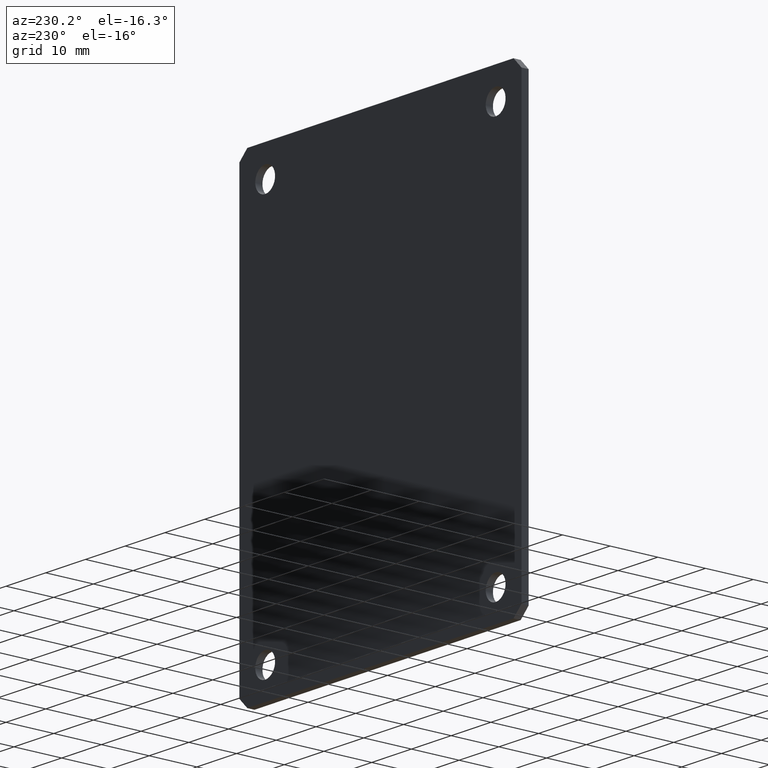
[diagram: clean part render]
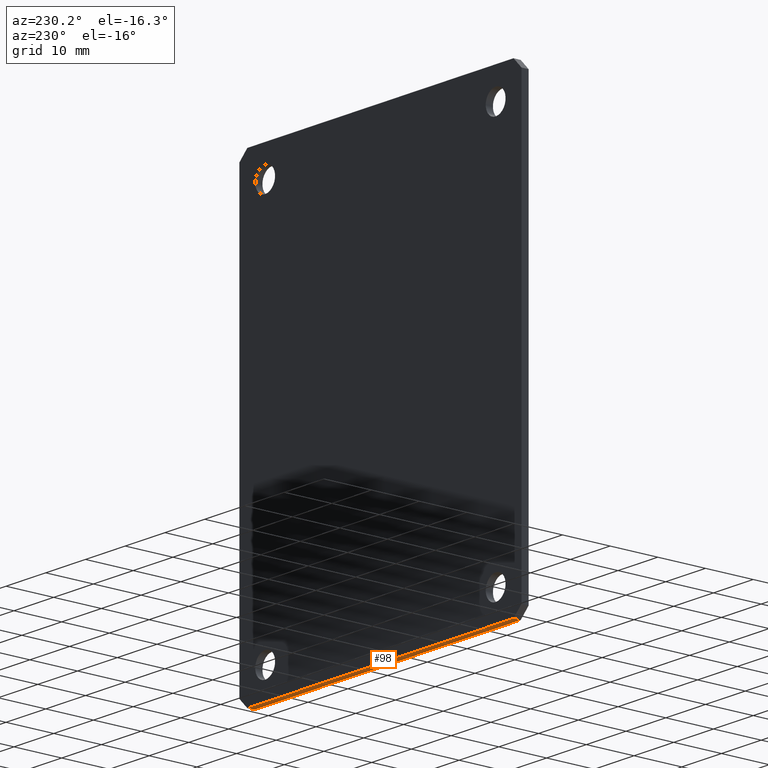
[diagram: same view with one face highlighted and labeled with its STEP entity id]
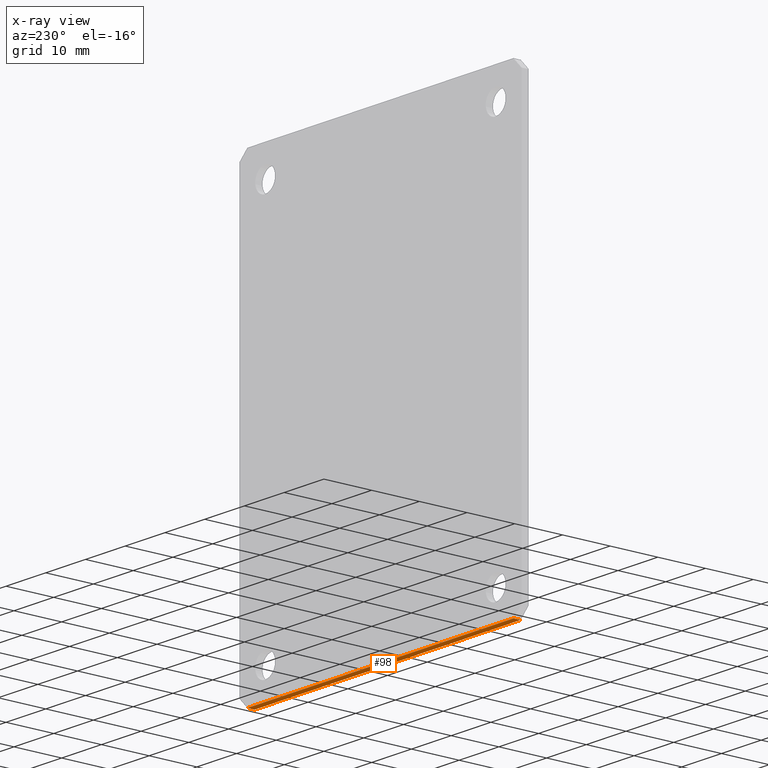
[diagram: x-ray of the same camera — body ghosted, the highlighted face saturated]
A machine part, auxiliary view. The second image highlights one B-rep face of the part: STEP entity #98.
The next image is the same camera in x-ray: the body ghosted, the highlighted face saturated — about 0% of this face is hidden behind the body in this view.
In plain terms, the highlighted planar face has unit normal (0, -0, 1).
Its self-contained STEP definition (entity closure, byte-faithful):
#5 = VERTEX_POINT ( 'NONE', #393 ) ;
#6 = EDGE_CURVE ( 'NONE', #5, #138, #392, .T. ) ;
#46 = EDGE_CURVE ( 'NONE', #54, #222, #488, .T. ) ;
#54 = VERTEX_POINT ( 'NONE', #472 ) ;
#95 = EDGE_CURVE ( 'NONE', #54, #5, #426, .T. ) ;
#98 = ADVANCED_FACE ( 'NONE', ( #417 ), #416, .F. ) ;
#99 = EDGE_LOOP ( 'NONE', ( #100, #101, #102, #103 ) ) ;
#100 = ORIENTED_EDGE ( 'NONE', *, *, #6, .T. ) ;
#101 = ORIENTED_EDGE ( 'NONE', *, *, #133, .F. ) ;
#102 = ORIENTED_EDGE ( 'NONE', *, *, #46, .F. ) ;
#103 = ORIENTED_EDGE ( 'NONE', *, *, #95, .T. ) ;
#133 = EDGE_CURVE ( 'NONE', #222, #138, #595, .T. ) ;
#138 = VERTEX_POINT ( 'NONE', #590 ) ;
#222 = VERTEX_POINT ( 'NONE', #357 ) ;
#357 = CARTESIAN_POINT ( 'NONE',  ( -33.49999999999999300, 1.500000000000000000, -46.99999999999999300 ) ) ;
#389 = DIRECTION ( 'NONE',  ( -1.000000000000000000, 0.0000000000000000000, 0.0000000000000000000 ) ) ;
#390 = VECTOR ( 'NONE', #389, 1000.000000000000000 ) ;
#391 = CARTESIAN_POINT ( 'NONE',  ( 33.49999999999999300, 0.0000000000000000000, -46.99999999999999300 ) ) ;
#392 = LINE ( 'NONE', #391, #390 ) ;
#393 = CARTESIAN_POINT ( 'NONE',  ( 33.49999999999999300, 0.0000000000000000000, -46.99999999999999300 ) ) ;
#413 = DIRECTION ( 'NONE',  ( 0.0000000000000000000, -0.0000000000000000000, 1.000000000000000000 ) ) ;
#414 = CARTESIAN_POINT ( 'NONE',  ( 33.49999999999999300, 1.500000000000000000, -46.99999999999999300 ) ) ;
#415 = AXIS2_PLACEMENT_3D ( 'NONE', #414, #413, #570 ) ;
#416 = PLANE ( 'NONE',  #415 ) ;
#417 = FACE_OUTER_BOUND ( 'NONE', #99, .T. ) ;
#418 = DIRECTION ( 'NONE',  ( -0.0000000000000000000, -1.000000000000000000, -0.0000000000000000000 ) ) ;
#419 = VECTOR ( 'NONE', #418, 1000.000000000000000 ) ;
#420 = CARTESIAN_POINT ( 'NONE',  ( 33.49999999999999300, 1.500000000000000000, -46.99999999999999300 ) ) ;
#426 = LINE ( 'NONE', #420, #419 ) ;
#472 = CARTESIAN_POINT ( 'NONE',  ( 33.49999999999999300, 1.500000000000000000, -46.99999999999999300 ) ) ;
#482 = DIRECTION ( 'NONE',  ( -1.000000000000000000, 0.0000000000000000000, 0.0000000000000000000 ) ) ;
#483 = VECTOR ( 'NONE', #482, 1000.000000000000000 ) ;
#484 = CARTESIAN_POINT ( 'NONE',  ( 33.49999999999999300, 1.500000000000000000, -46.99999999999999300 ) ) ;
#488 = LINE ( 'NONE', #484, #483 ) ;
#570 = DIRECTION ( 'NONE',  ( 1.000000000000000000, 0.0000000000000000000, -0.0000000000000000000 ) ) ;
#590 = CARTESIAN_POINT ( 'NONE',  ( -33.49999999999999300, 0.0000000000000000000, -46.99999999999999300 ) ) ;
#592 = DIRECTION ( 'NONE',  ( -0.0000000000000000000, -1.000000000000000000, -0.0000000000000000000 ) ) ;
#593 = VECTOR ( 'NONE', #592, 1000.000000000000000 ) ;
#594 = CARTESIAN_POINT ( 'NONE',  ( -33.49999999999999300, 1.500000000000000000, -46.99999999999999300 ) ) ;
#595 = LINE ( 'NONE', #594, #593 ) ;